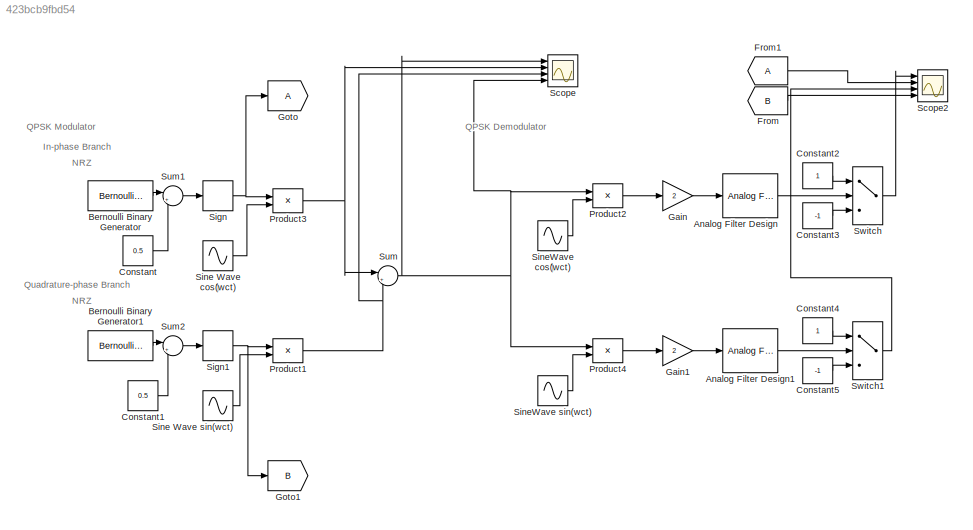
MODEL slx_423bcb9fbd54
KIND model
CONFIG AbsTol = auto
CONFIG EnableMultiTasking = off
CONFIG FixedStep = auto
CONFIG MaxStep = auto
CONFIG MinStep = auto
CONFIG RelTol = 1e-3
CONFIG SampleTimeConstraint = Unconstrained
CONFIG Solver = VariableStepAuto
CONFIG SolverName = VariableStepAuto
CONFIG StartTime = 0.0
CONFIG StopTime = 10.0
BLOCK [Reference] Analog Filter Design  REF=dsparch4/Analog
Filter Design
  Ports = [1, 1]
  SourceBlock = dsparch4/Analog\nFilter Design
  SourceProductBaseCode = DS
  SourceProductName = DSP System Toolbox
  SourceType = Analog Filter Design
BLOCK [Reference] Analog Filter Design1  REF=dsparch4/Analog
Filter Design
  Ports = [1, 1]
  SourceBlock = dsparch4/Analog\nFilter Design
  SourceProductBaseCode = DS
  SourceProductName = DSP System Toolbox
  SourceType = Analog Filter Design
BLOCK [Reference] Bernoulli Binary Generator  REF=commrandsrc3/Bernoulli Binary
Generator
  Ports = [0, 1]
  SourceBlock = commrandsrc3/Bernoulli Binary\nGenerator
  SourceProductBaseCode = CM
  SourceProductName = Communications System Toolbox
  SourceType = Bernoulli Binary Generator
BLOCK [Reference] Bernoulli Binary Generator1  REF=commrandsrc3/Bernoulli Binary
Generator
  Ports = [0, 1]
  SourceBlock = commrandsrc3/Bernoulli Binary\nGenerator
  SourceProductBaseCode = CM
  SourceProductName = Communications System Toolbox
  SourceType = Bernoulli Binary Generator
BLOCK [Constant] Constant
  Value = 0.5
BLOCK [Constant] Constant1
  Value = 0.5
BLOCK [Constant] Constant2
BLOCK [Constant] Constant3
  Value = -1
BLOCK [Constant] Constant4
BLOCK [Constant] Constant5
  Value = -1
BLOCK [From] From
  GotoTag = B
BLOCK [From] From1
BLOCK [Gain] Gain
  Gain = 2
  OutDataTypeStr = Inherit: Inherit via internal rule
  ParamDataTypeStr = Inherit: Inherit via internal rule
  SaturateOnIntegerOverflow = off
BLOCK [Gain] Gain1
  Gain = 2
  OutDataTypeStr = Inherit: Inherit via internal rule
  ParamDataTypeStr = Inherit: Inherit via internal rule
  SaturateOnIntegerOverflow = off
BLOCK [Goto] Goto
BLOCK [Goto] Goto1
  GotoTag = B
BLOCK [Product] Product1
  Ports = [2, 1]
  RndMeth = Floor
BLOCK [Product] Product2
  Ports = [2, 1]
  RndMeth = Floor
BLOCK [Product] Product3
  Ports = [2, 1]
  RndMeth = Floor
BLOCK [Product] Product4
  Ports = [2, 1]
  RndMeth = Floor
BLOCK [Scope] Scope
  NumInputPorts = 4
  Ports = [4]
  ScopeSpecificationString = Simulink.scopes.TimeScopeBlockCfg('CurrentConfiguration', extmgr.ConfigurationSet(extmgr.Configuration('Core','General UI',true),extmgr.Configuration('Core','Source UI',true),extmgr.Configuration('Sources','WiredSimulink',true),extmgr.Configuration('Visuals','Time Domain',true,'SerializedDisplays',{struct('MinYLimReal','-1.76773','MaxYLimReal','1.76773','YLabelReal','','MinYLimMag','0.00000','MaxY...<+3360ch>
BLOCK [Scope] Scope2
  NumInputPorts = 4
  Ports = [4]
  ScopeSpecificationString = Simulink.scopes.TimeScopeBlockCfg('CurrentConfiguration', extmgr.ConfigurationSet(extmgr.Configuration('Core','General UI',true),extmgr.Configuration('Core','Source UI',true),extmgr.Configuration('Sources','WiredSimulink',true,'DataLoggingVariableName','ScopeData2'),extmgr.Configuration('Visuals','Time Domain',true,'SerializedDisplays',{struct('MinYLimReal','-1.25','MaxYLimReal','0.88632','YLabelR...<+3418ch>
BLOCK [Signum] Sign
BLOCK [Signum] Sign1
BLOCK [Sin] Sine Wave cos(‏wct)
  Frequency = 4*2*pi
  Phase = pi/2
  Ports = [0, 1]
  SampleTime = 0.001
BLOCK [Sin] Sine Wave sin(wct)
  Amplitude = -1
  Frequency = 4*2*pi
  Ports = [0, 1]
  SampleTime = 0.001
BLOCK [Sin] SineWave cos(‏wct)
  Frequency = 4*2*pi
  Phase = pi/2
  Ports = [0, 1]
  SampleTime = 0.001
BLOCK [Sin] SineWave sin(wct)
  Amplitude = -1
  Frequency = 4*2*pi
  Ports = [0, 1]
  SampleTime = 0.001
BLOCK [Sum] Sum
  IconShape = round
  InputSameDT = off
  Inputs = |++
  OutDataTypeStr = Inherit: Inherit via internal rule
  Ports = [2, 1]
  SaturateOnIntegerOverflow = off
BLOCK [Sum] Sum1
  IconShape = round
  InputSameDT = off
  Inputs = |+-
  OutDataTypeStr = Inherit: Inherit via internal rule
  Ports = [2, 1]
  SaturateOnIntegerOverflow = off
BLOCK [Sum] Sum2
  IconShape = round
  InputSameDT = off
  Inputs = |+-
  OutDataTypeStr = Inherit: Inherit via internal rule
  Ports = [2, 1]
  SaturateOnIntegerOverflow = off
BLOCK [Switch] Switch
  Criteria = u2 > Threshold
  RndMeth = Round
  Threshold = 0.0001
BLOCK [Switch] Switch1
  Criteria = u2 > Threshold
  RndMeth = Round
  Threshold = 0.0001
ANNOTATION (root): In-phase Branch
ANNOTATION (root): NRZ
ANNOTATION (root): QPSK Demodulator
ANNOTATION (root): QPSK Modulator
ANNOTATION (root): Quadrature-phase Branch
LINE Analog Filter Design1:1 -> Switch1:2
LINE Analog Filter Design:1 -> Switch:2
LINE Bernoulli Binary Generator1:1 -> Sum2:1
LINE Bernoulli Binary Generator:1 -> Sum1:1
LINE Constant1:1 -> Sum2:2
LINE Constant2:1 -> Switch:1
LINE Constant3:1 -> Switch:3
LINE Constant4:1 -> Switch1:1
LINE Constant5:1 -> Switch1:3
LINE Constant:1 -> Sum1:2
LINE From1:1 -> Scope2:2
LINE From:1 -> Scope2:4
LINE Gain1:1 -> Analog Filter Design1:1
LINE Gain:1 -> Analog Filter Design:1
NET Product1:1 -> Scope:3, Sum:2
LINE Product2:1 -> Gain:1
NET Product3:1 -> Scope:2, Sum:1
LINE Product4:1 -> Gain1:1
NET Sign1:1 -> Goto1:1, Product1:1
NET Sign:1 -> Goto:1, Product3:1
LINE Sine Wave cos(‏wct):1 -> Product3:2
LINE Sine Wave sin(wct):1 -> Product1:2
LINE SineWave cos(‏wct):1 -> Product2:2
LINE SineWave sin(wct):1 -> Product4:2
LINE Sum1:1 -> Sign:1
LINE Sum2:1 -> Sign1:1
NET Sum:1 -> Product2:1, Product4:1, Scope:1, Scope:4
LINE Switch1:1 -> Scope2:3
LINE Switch:1 -> Scope2:1
note: NET lines group one-source signal fan-out (src -> all destinations, sorted); 1:1 wires keep LINE
